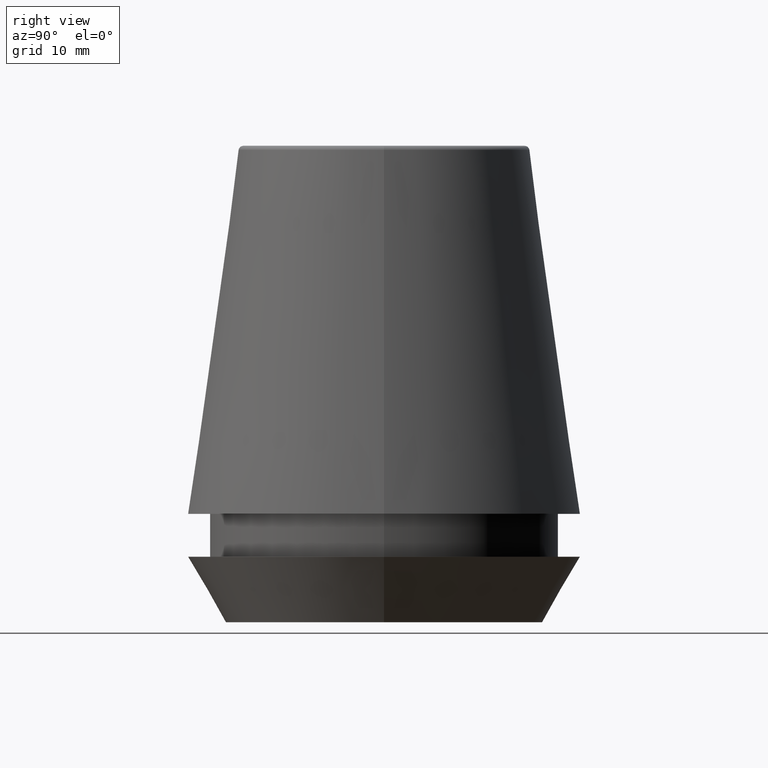
[diagram: clean part render]
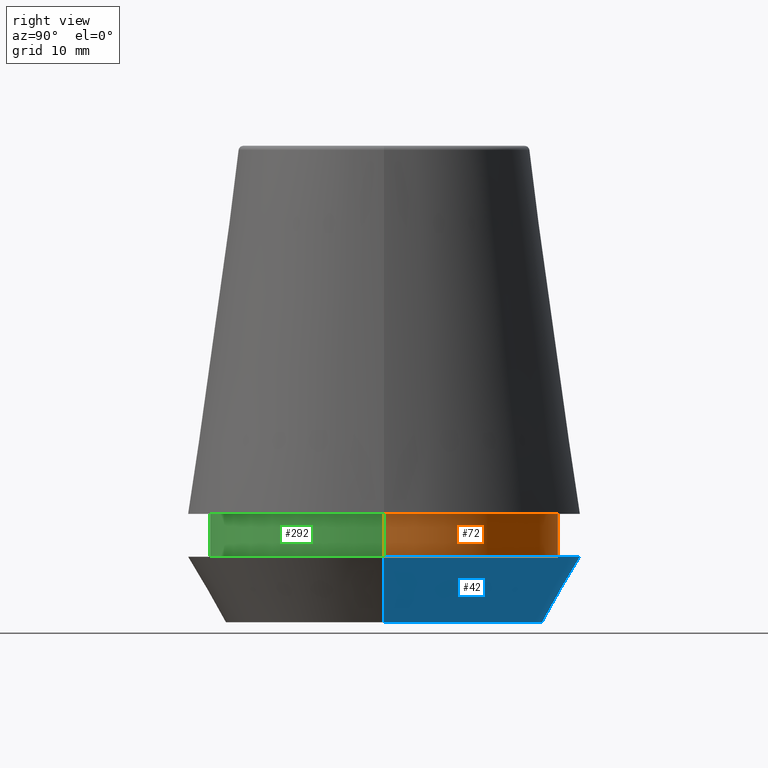
[diagram: same view with three faces highlighted in distinct colors, each labeled with its STEP entity id]
A machine part, right view with three faces highlighted in distinct colors.
Their STEP definitions:

[orange] entity #72 — the highlighted cylindrical surface (partial cylindrical patch) has radius 14.6 mm, axis along (-0, -0, 1).
#10 = DIRECTION ( 'NONE',  ( -0.0000000000000000000, -0.0000000000000000000, 1.000000000000000000 ) ) ;
#21 = LINE ( 'NONE', #283, #181 ) ;
#22 = VERTEX_POINT ( 'NONE', #110 ) ;
#30 = FACE_OUTER_BOUND ( 'NONE', #103, .T. ) ;
#32 = CIRCLE ( 'NONE', #194, 14.60000000000000000 ) ;
#33 = EDGE_CURVE ( 'NONE', #221, #170, #21, .T. ) ;
#43 = EDGE_CURVE ( 'NONE', #221, #229, #32, .T. ) ;
#69 = EDGE_CURVE ( 'NONE', #170, #22, #349, .T. ) ;
#71 = CYLINDRICAL_SURFACE ( 'NONE', #222, 14.60000000000000000 ) ;
#72 = ADVANCED_FACE ( 'NONE', ( #30 ), #71, .T. ) ;
#82 = ORIENTED_EDGE ( 'NONE', *, *, #43, .T. ) ;
#100 = DIRECTION ( 'NONE',  ( 1.000000000000000000, 0.0000000000000000000, 0.0000000000000000000 ) ) ;
#103 = EDGE_LOOP ( 'NONE', ( #82, #143, #242, #215 ) ) ;
#105 = CARTESIAN_POINT ( 'NONE',  ( 14.60000000000000000, 0.0000000000000000000, 9.099999999999997900 ) ) ;
#110 = CARTESIAN_POINT ( 'NONE',  ( -14.60000000000000000, 1.787984326755135800E-015, 9.099999999999997900 ) ) ;
#118 = CARTESIAN_POINT ( 'NONE',  ( 14.60000000000000000, 0.0000000000000000000, 5.500000000000005300 ) ) ;
#143 = ORIENTED_EDGE ( 'NONE', *, *, #192, .T. ) ;
#151 = DIRECTION ( 'NONE',  ( -0.0000000000000000000, -0.0000000000000000000, 1.000000000000000000 ) ) ;
#163 = DIRECTION ( 'NONE',  ( -0.0000000000000000000, -0.0000000000000000000, 1.000000000000000000 ) ) ;
#170 = VERTEX_POINT ( 'NONE', #105 ) ;
#181 = VECTOR ( 'NONE', #230, 1000.000000000000000 ) ;
#192 = EDGE_CURVE ( 'NONE', #229, #22, #378, .T. ) ;
#194 = AXIS2_PLACEMENT_3D ( 'NONE', #290, #10, #100 ) ;
#197 = CARTESIAN_POINT ( 'NONE',  ( -14.60000000000000000, 1.787984326755135800E-015, 101.8074564848000400 ) ) ;
#213 = DIRECTION ( 'NONE',  ( 1.000000000000000000, 0.0000000000000000000, 0.0000000000000000000 ) ) ;
#215 = ORIENTED_EDGE ( 'NONE', *, *, #33, .F. ) ;
#220 = VECTOR ( 'NONE', #163, 1000.000000000000000 ) ;
#221 = VERTEX_POINT ( 'NONE', #118 ) ;
#222 = AXIS2_PLACEMENT_3D ( 'NONE', #240, #342, #355 ) ;
#229 = VERTEX_POINT ( 'NONE', #314 ) ;
#230 = DIRECTION ( 'NONE',  ( -0.0000000000000000000, -0.0000000000000000000, 1.000000000000000000 ) ) ;
#240 = CARTESIAN_POINT ( 'NONE',  ( 0.0000000000000000000, 0.0000000000000000000, 101.8074564848000400 ) ) ;
#242 = ORIENTED_EDGE ( 'NONE', *, *, #69, .F. ) ;
#274 = CARTESIAN_POINT ( 'NONE',  ( 0.0000000000000000000, 0.0000000000000000000, 9.099999999999997900 ) ) ;
#283 = CARTESIAN_POINT ( 'NONE',  ( 14.60000000000000000, 0.0000000000000000000, 101.8074564848000400 ) ) ;
#290 = CARTESIAN_POINT ( 'NONE',  ( 0.0000000000000000000, 0.0000000000000000000, 5.500000000000005300 ) ) ;
#314 = CARTESIAN_POINT ( 'NONE',  ( -14.60000000000000000, 1.787984326755135800E-015, 5.500000000000005300 ) ) ;
#342 = DIRECTION ( 'NONE',  ( -0.0000000000000000000, -0.0000000000000000000, 1.000000000000000000 ) ) ;
#349 = CIRCLE ( 'NONE', #352, 14.60000000000000000 ) ;
#352 = AXIS2_PLACEMENT_3D ( 'NONE', #274, #151, #213 ) ;
#355 = DIRECTION ( 'NONE',  ( 1.000000000000000000, 0.0000000000000000000, 0.0000000000000000000 ) ) ;
#378 = LINE ( 'NONE', #197, #220 ) ;

[blue] entity #42 — the highlighted conical surface has half-angle 30 deg.
#9 = CONICAL_SURFACE ( 'NONE', #17, 13.32457351945710200, 0.5235987755982927100 ) ;
#14 = CARTESIAN_POINT ( 'NONE',  ( 0.0000000000000000000, 0.0000000000000000000, 0.0000000000000000000 ) ) ;
#17 = AXIS2_PLACEMENT_3D ( 'NONE', #135, #316, #104 ) ;
#37 = CARTESIAN_POINT ( 'NONE',  ( -16.50000000000000000, 2.020667218593133100E-015, 5.500000000000005300 ) ) ;
#42 = ADVANCED_FACE ( 'NONE', ( #363 ), #9, .T. ) ;
#45 = EDGE_CURVE ( 'NONE', #319, #276, #365, .T. ) ;
#52 = ORIENTED_EDGE ( 'NONE', *, *, #45, .T. ) ;
#59 = VECTOR ( 'NONE', #84, 999.9999999999998900 ) ;
#66 = ORIENTED_EDGE ( 'NONE', *, *, #374, .F. ) ;
#73 = DIRECTION ( 'NONE',  ( -0.0000000000000000000, -0.0000000000000000000, 1.000000000000000000 ) ) ;
#79 = AXIS2_PLACEMENT_3D ( 'NONE', #14, #73, #324 ) ;
#84 = DIRECTION ( 'NONE',  ( -0.4999999999999947300, 6.123233995736700700E-017, 0.8660254037844418200 ) ) ;
#104 = DIRECTION ( 'NONE',  ( 1.000000000000000000, 0.0000000000000000000, 0.0000000000000000000 ) ) ;
#120 = ORIENTED_EDGE ( 'NONE', *, *, #186, .T. ) ;
#135 = CARTESIAN_POINT ( 'NONE',  ( 0.0000000000000000000, 0.0000000000000000000, 0.0000000000000000000 ) ) ;
#136 = ORIENTED_EDGE ( 'NONE', *, *, #238, .F. ) ;
#154 = LINE ( 'NONE', #234, #224 ) ;
#159 = CARTESIAN_POINT ( 'NONE',  ( -13.32457351945710200, 1.631789631060672300E-015, 0.0000000000000000000 ) ) ;
#160 = CIRCLE ( 'NONE', #232, 16.50000000000000000 ) ;
#167 = VERTEX_POINT ( 'NONE', #37 ) ;
#186 = EDGE_CURVE ( 'NONE', #276, #167, #321, .T. ) ;
#224 = VECTOR ( 'NONE', #311, 999.9999999999998900 ) ;
#232 = AXIS2_PLACEMENT_3D ( 'NONE', #332, #299, #384 ) ;
#234 = CARTESIAN_POINT ( 'NONE',  ( 13.32457351945710200, 0.0000000000000000000, 0.0000000000000000000 ) ) ;
#238 = EDGE_CURVE ( 'NONE', #379, #167, #160, .T. ) ;
#251 = EDGE_LOOP ( 'NONE', ( #52, #120, #136, #66 ) ) ;
#252 = CARTESIAN_POINT ( 'NONE',  ( -13.32457351945710200, 1.826228424826902600E-015, 0.0000000000000000000 ) ) ;
#261 = CARTESIAN_POINT ( 'NONE',  ( 13.32457351945710200, 0.0000000000000000000, 0.0000000000000000000 ) ) ;
#275 = CARTESIAN_POINT ( 'NONE',  ( 16.50000000000000000, 0.0000000000000000000, 5.500000000000005300 ) ) ;
#276 = VERTEX_POINT ( 'NONE', #252 ) ;
#299 = DIRECTION ( 'NONE',  ( -0.0000000000000000000, -0.0000000000000000000, 1.000000000000000000 ) ) ;
#311 = DIRECTION ( 'NONE',  ( 0.4999999999999947300, 0.0000000000000000000, 0.8660254037844418200 ) ) ;
#316 = DIRECTION ( 'NONE',  ( -0.0000000000000000000, -0.0000000000000000000, 1.000000000000000000 ) ) ;
#319 = VERTEX_POINT ( 'NONE', #261 ) ;
#321 = LINE ( 'NONE', #159, #59 ) ;
#324 = DIRECTION ( 'NONE',  ( 1.000000000000000000, 0.0000000000000000000, 0.0000000000000000000 ) ) ;
#332 = CARTESIAN_POINT ( 'NONE',  ( 0.0000000000000000000, 0.0000000000000000000, 5.500000000000005300 ) ) ;
#363 = FACE_OUTER_BOUND ( 'NONE', #251, .T. ) ;
#365 = CIRCLE ( 'NONE', #79, 13.32457351945710200 ) ;
#374 = EDGE_CURVE ( 'NONE', #319, #379, #154, .T. ) ;
#379 = VERTEX_POINT ( 'NONE', #275 ) ;
#384 = DIRECTION ( 'NONE',  ( 1.000000000000000000, 0.0000000000000000000, 0.0000000000000000000 ) ) ;

[green] entity #292 — the highlighted cylindrical surface (partial cylindrical patch) has radius 14.6 mm, axis along (-0, -0, 1).
#21 = LINE ( 'NONE', #283, #181 ) ;
#22 = VERTEX_POINT ( 'NONE', #110 ) ;
#33 = EDGE_CURVE ( 'NONE', #221, #170, #21, .T. ) ;
#34 = ORIENTED_EDGE ( 'NONE', *, *, #192, .F. ) ;
#53 = DIRECTION ( 'NONE',  ( -0.0000000000000000000, -0.0000000000000000000, 1.000000000000000000 ) ) ;
#99 = EDGE_CURVE ( 'NONE', #22, #170, #254, .T. ) ;
#105 = CARTESIAN_POINT ( 'NONE',  ( 14.60000000000000000, 0.0000000000000000000, 9.099999999999997900 ) ) ;
#109 = FACE_OUTER_BOUND ( 'NONE', #262, .T. ) ;
#110 = CARTESIAN_POINT ( 'NONE',  ( -14.60000000000000000, 1.787984326755135800E-015, 9.099999999999997900 ) ) ;
#113 = CYLINDRICAL_SURFACE ( 'NONE', #328, 14.60000000000000000 ) ;
#115 = ORIENTED_EDGE ( 'NONE', *, *, #33, .T. ) ;
#118 = CARTESIAN_POINT ( 'NONE',  ( 14.60000000000000000, 0.0000000000000000000, 5.500000000000005300 ) ) ;
#130 = EDGE_CURVE ( 'NONE', #229, #221, #223, .T. ) ;
#148 = CARTESIAN_POINT ( 'NONE',  ( 0.0000000000000000000, 0.0000000000000000000, 9.099999999999997900 ) ) ;
#163 = DIRECTION ( 'NONE',  ( -0.0000000000000000000, -0.0000000000000000000, 1.000000000000000000 ) ) ;
#170 = VERTEX_POINT ( 'NONE', #105 ) ;
#180 = ORIENTED_EDGE ( 'NONE', *, *, #99, .F. ) ;
#181 = VECTOR ( 'NONE', #230, 1000.000000000000000 ) ;
#184 = DIRECTION ( 'NONE',  ( -0.0000000000000000000, -0.0000000000000000000, 1.000000000000000000 ) ) ;
#192 = EDGE_CURVE ( 'NONE', #229, #22, #378, .T. ) ;
#196 = CARTESIAN_POINT ( 'NONE',  ( 0.0000000000000000000, 0.0000000000000000000, 101.8074564848000400 ) ) ;
#197 = CARTESIAN_POINT ( 'NONE',  ( -14.60000000000000000, 1.787984326755135800E-015, 101.8074564848000400 ) ) ;
#206 = DIRECTION ( 'NONE',  ( -0.0000000000000000000, -0.0000000000000000000, 1.000000000000000000 ) ) ;
#212 = DIRECTION ( 'NONE',  ( 1.000000000000000000, 0.0000000000000000000, 0.0000000000000000000 ) ) ;
#220 = VECTOR ( 'NONE', #163, 1000.000000000000000 ) ;
#221 = VERTEX_POINT ( 'NONE', #118 ) ;
#223 = CIRCLE ( 'NONE', #322, 14.60000000000000000 ) ;
#229 = VERTEX_POINT ( 'NONE', #314 ) ;
#230 = DIRECTION ( 'NONE',  ( -0.0000000000000000000, -0.0000000000000000000, 1.000000000000000000 ) ) ;
#244 = DIRECTION ( 'NONE',  ( 1.000000000000000000, 0.0000000000000000000, 0.0000000000000000000 ) ) ;
#254 = CIRCLE ( 'NONE', #270, 14.60000000000000000 ) ;
#262 = EDGE_LOOP ( 'NONE', ( #34, #271, #115, #180 ) ) ;
#270 = AXIS2_PLACEMENT_3D ( 'NONE', #148, #184, #212 ) ;
#271 = ORIENTED_EDGE ( 'NONE', *, *, #130, .T. ) ;
#282 = DIRECTION ( 'NONE',  ( 1.000000000000000000, 0.0000000000000000000, 0.0000000000000000000 ) ) ;
#283 = CARTESIAN_POINT ( 'NONE',  ( 14.60000000000000000, 0.0000000000000000000, 101.8074564848000400 ) ) ;
#292 = ADVANCED_FACE ( 'NONE', ( #109 ), #113, .T. ) ;
#314 = CARTESIAN_POINT ( 'NONE',  ( -14.60000000000000000, 1.787984326755135800E-015, 5.500000000000005300 ) ) ;
#322 = AXIS2_PLACEMENT_3D ( 'NONE', #329, #53, #282 ) ;
#328 = AXIS2_PLACEMENT_3D ( 'NONE', #196, #206, #244 ) ;
#329 = CARTESIAN_POINT ( 'NONE',  ( 0.0000000000000000000, 0.0000000000000000000, 5.500000000000005300 ) ) ;
#378 = LINE ( 'NONE', #197, #220 ) ;